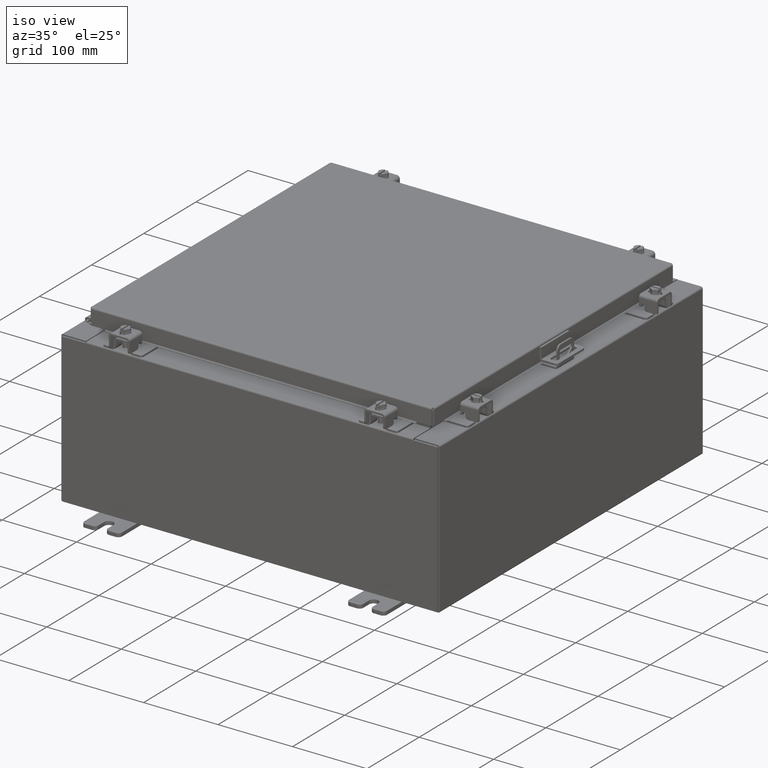
[diagram: clean part render]
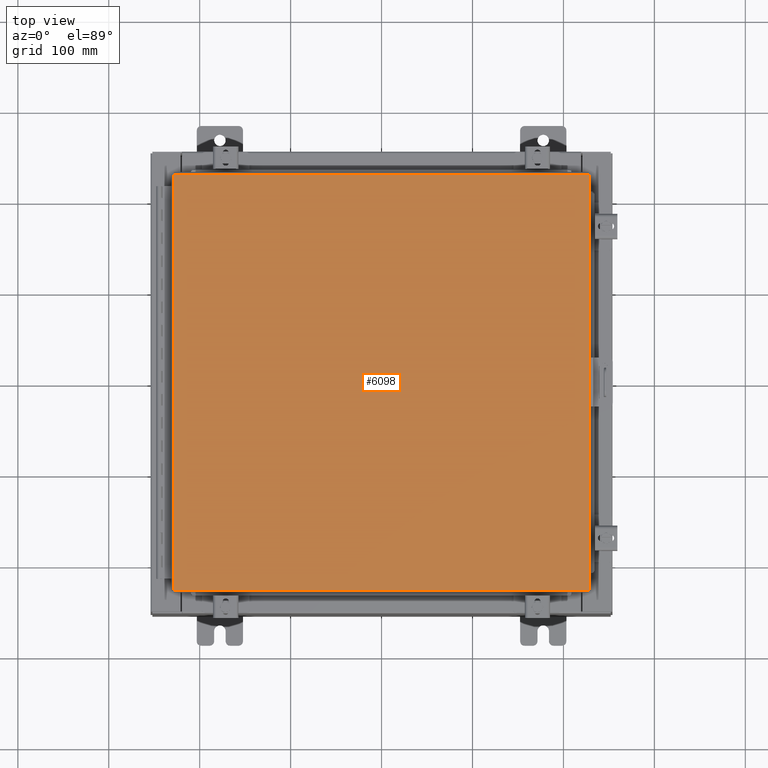
[diagram: tour spotlight — one face highlighted and labeled with its STEP entity id]
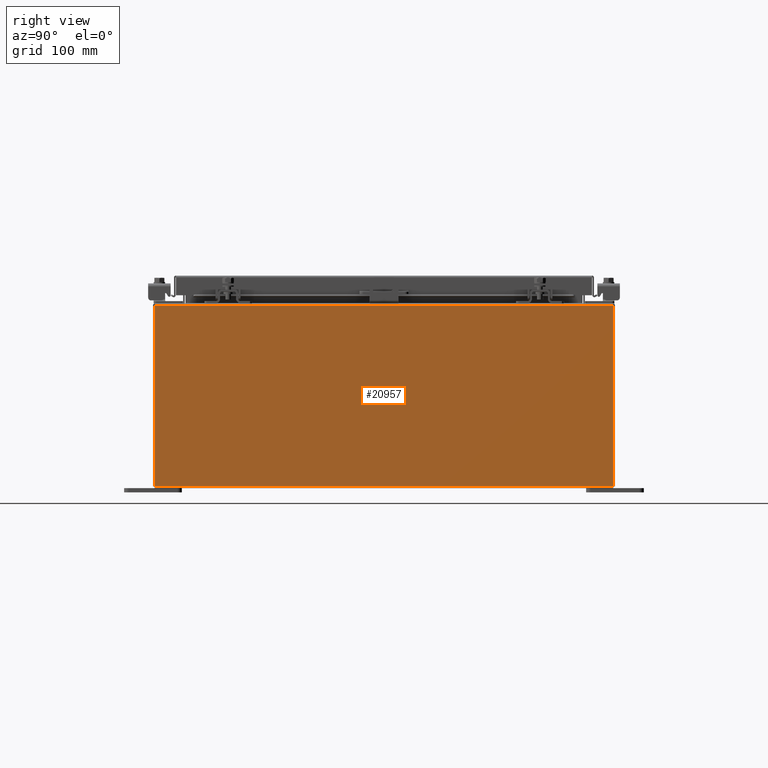
[diagram: tour spotlight — one face highlighted and labeled with its STEP entity id]
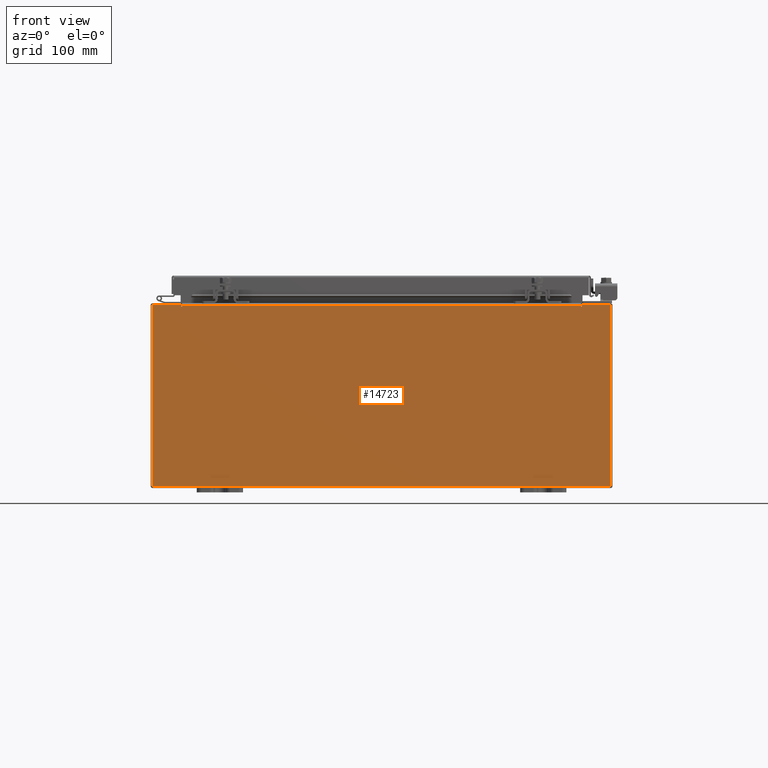
[diagram: tour spotlight — one face highlighted and labeled with its STEP entity id]
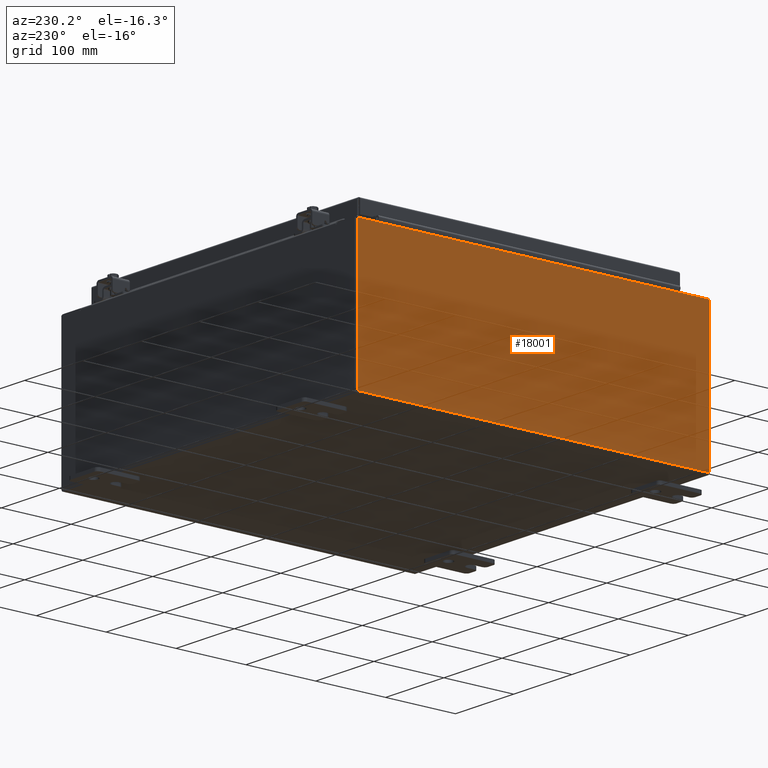
[diagram: tour spotlight — one face highlighted and labeled with its STEP entity id]
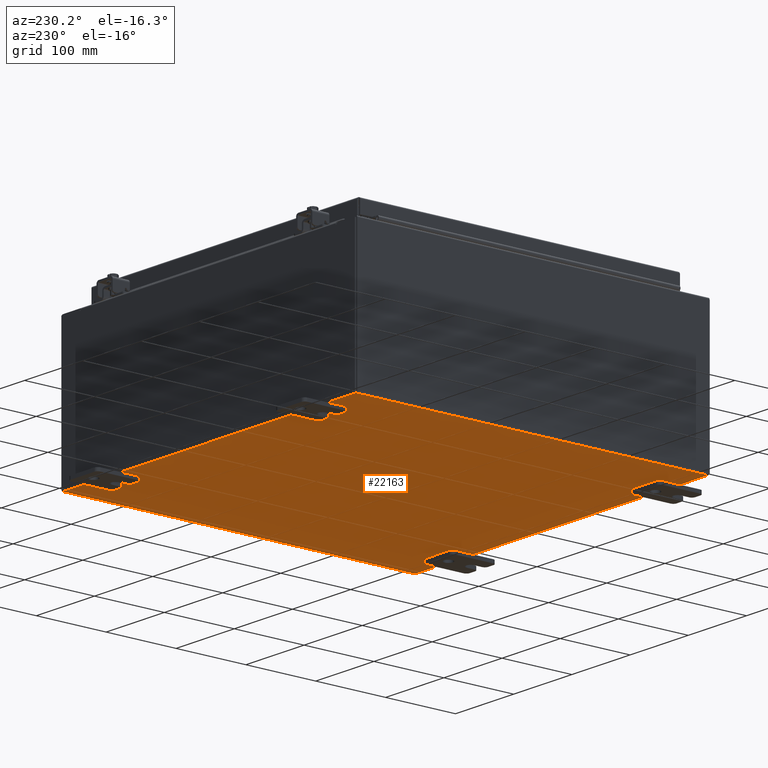
[diagram: tour spotlight — one face highlighted and labeled with its STEP entity id]
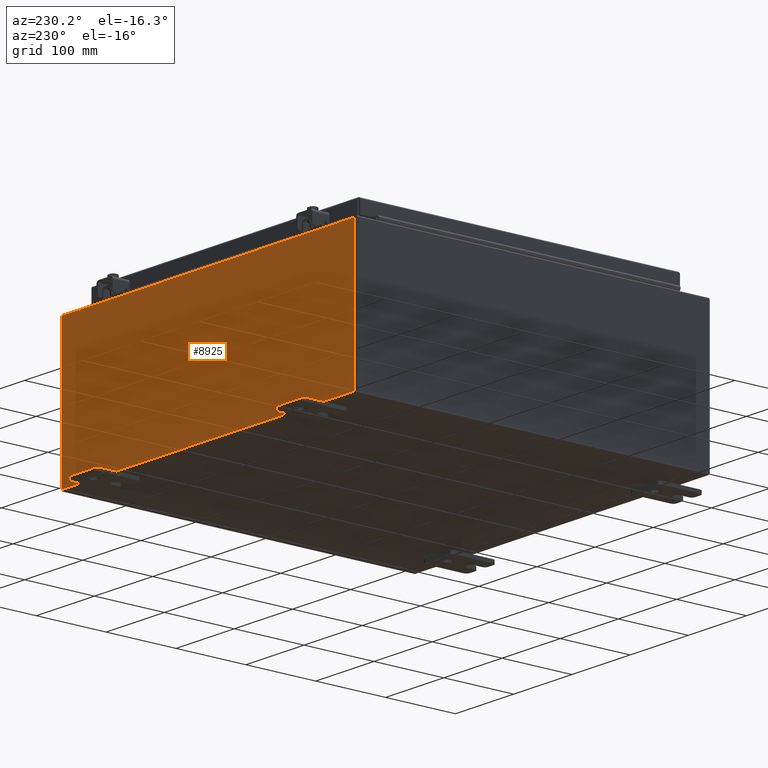
[diagram: tour spotlight — one face highlighted and labeled with its STEP entity id]
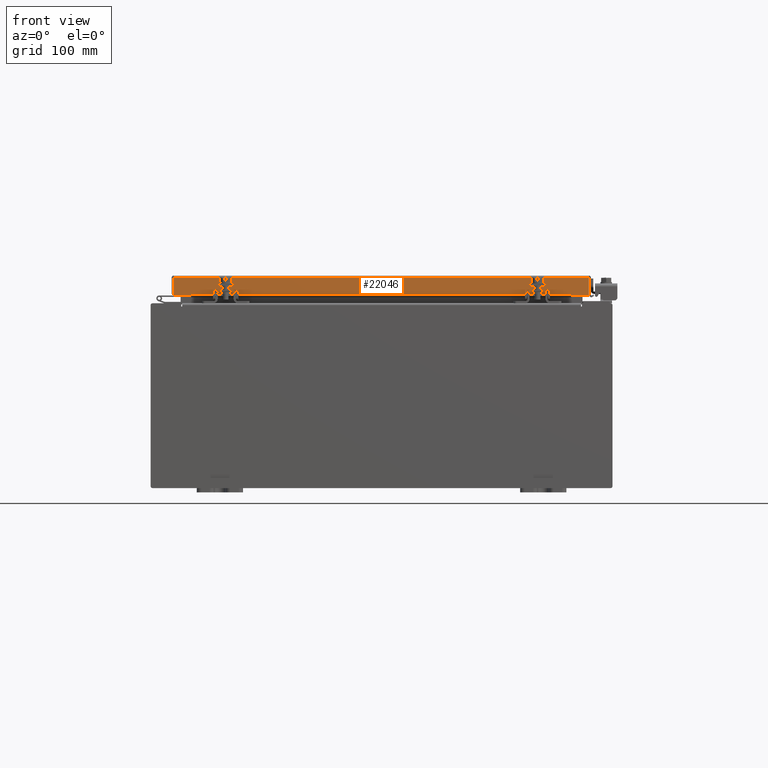
[diagram: tour spotlight — one face highlighted and labeled with its STEP entity id]
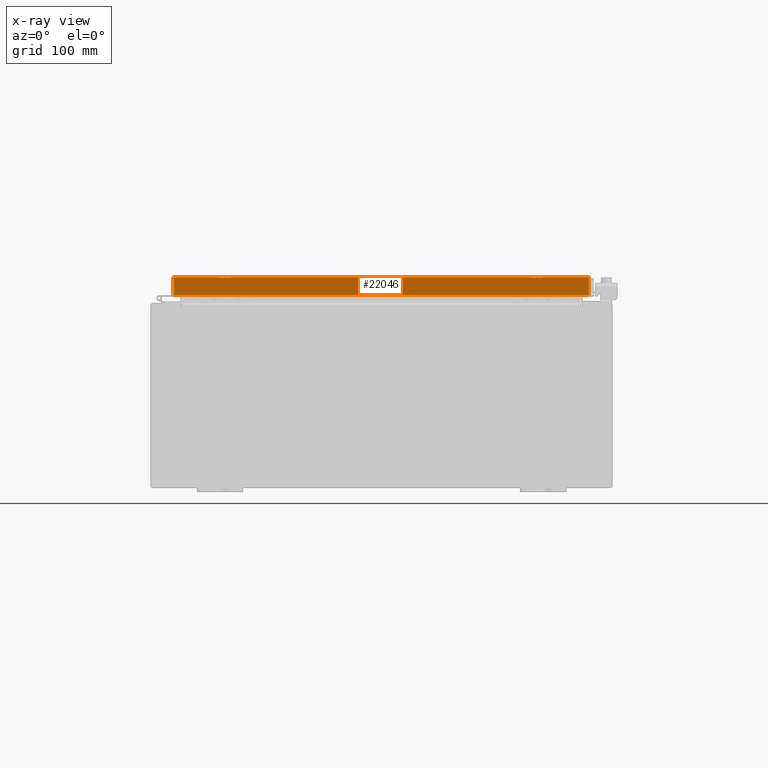
[diagram: x-ray of the same camera — body ghosted, this tour face saturated]
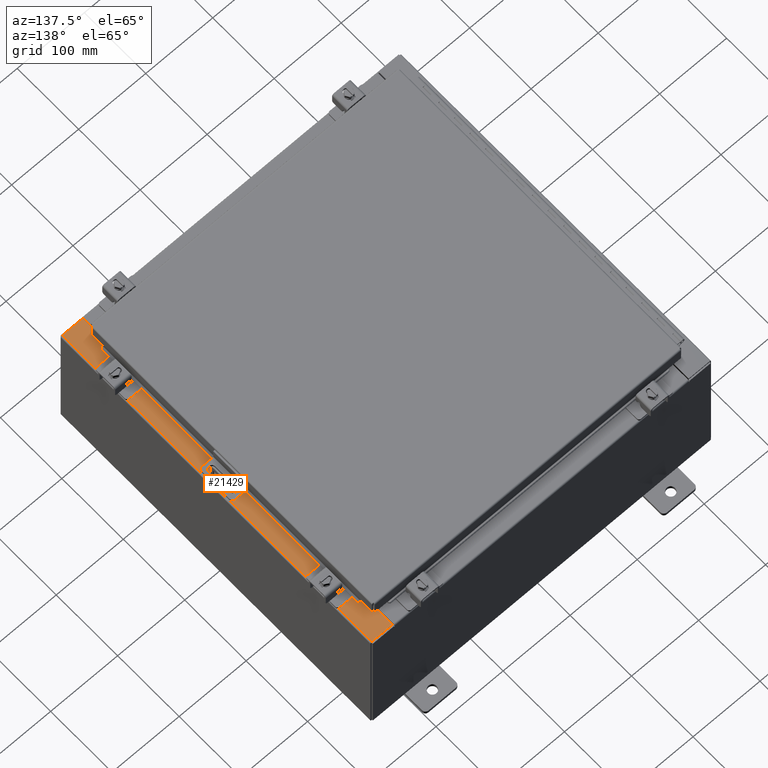
[diagram: tour spotlight — one face highlighted and labeled with its STEP entity id]
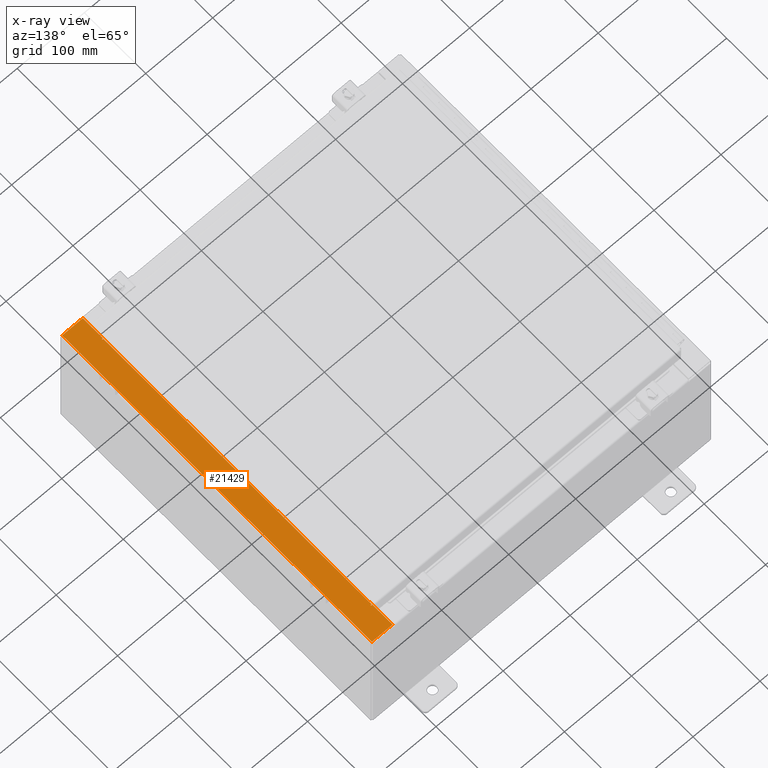
[diagram: x-ray of the same camera — body ghosted, this tour face saturated]
A machine part: a face-by-face anatomy tour. The part has 1613 B-rep faces; the first image is the clean iso view, then the 8 largest visible faces are spotlighted one at a time (largest first), each with its STEP entity span.

Face 1 — top view, entity #6098. In plain terms, the highlighted planar face has unit normal (0, 0, -1).
Definition (entity closure, byte-faithful):
#1781 = CARTESIAN_POINT ( 'NONE',  ( -8.990299999999997700, 9.006299999999999500, -2.048885995248197400E-016 ) ) ;
#2244 = CARTESIAN_POINT ( 'NONE',  ( -8.990299999999997700, 9.006299999999999500, -2.048885995248197400E-016 ) ) ;
#2343 = VERTEX_POINT ( 'NONE', #12674 ) ;
#2467 = VECTOR ( 'NONE', #25202, 39.37007874015748100 ) ;
#4000 = DIRECTION ( 'NONE',  ( 0.0000000000000000000, 0.0000000000000000000, -1.000000000000000000 ) ) ;
#4336 = ORIENTED_EDGE ( 'NONE', *, *, #22370, .T. ) ;
#4401 = LINE ( 'NONE', #27758, #5133 ) ;
#5133 = VECTOR ( 'NONE', #11882, 39.37007874015748100 ) ;
#6098 = ADVANCED_FACE ( 'NONE', ( #10915 ), #17638, .F. ) ;
#7315 = CARTESIAN_POINT ( 'NONE',  ( -8.990299999999999500, -9.006299999999999500, -2.048885995248197400E-016 ) ) ;
#7746 = CARTESIAN_POINT ( 'NONE',  ( 8.990299999999999500, -9.006299999999999500, -7.512581982576723400E-016 ) ) ;
#9296 = CARTESIAN_POINT ( 'NONE',  ( 8.990299999999999500, -9.006299999999999500, -7.512581982576723400E-016 ) ) ;
#9312 = VECTOR ( 'NONE', #17681, 39.37007874015748100 ) ;
#10915 = FACE_OUTER_BOUND ( 'NONE', #26260, .T. ) ;
#11882 = DIRECTION ( 'NONE',  ( 1.000000000000000000, -0.0000000000000000000, -0.0000000000000000000 ) ) ;
#12674 = CARTESIAN_POINT ( 'NONE',  ( 8.990300000000001300, 9.006299999999999500, -2.048885995248197400E-016 ) ) ;
#13491 = VERTEX_POINT ( 'NONE', #2244 ) ;
#13845 = LINE ( 'NONE', #9296, #2467 ) ;
#15088 = EDGE_CURVE ( 'NONE', #2343, #13491, #17511, .T. ) ;
#16135 = AXIS2_PLACEMENT_3D ( 'NONE', #24393, #4000, #19954 ) ;
#16940 = EDGE_CURVE ( 'NONE', #17789, #2343, #13845, .T. ) ;
#17061 = CARTESIAN_POINT ( 'NONE',  ( 8.990300000000001300, 9.006299999999999500, -2.048885995248197400E-016 ) ) ;
#17511 = LINE ( 'NONE', #17061, #28888 ) ;
#17638 = PLANE ( 'NONE',  #16135 ) ;
#17681 = DIRECTION ( 'NONE',  ( 0.0000000000000000000, -1.000000000000000000, 0.0000000000000000000 ) ) ;
#17789 = VERTEX_POINT ( 'NONE', #7746 ) ;
#18793 = VERTEX_POINT ( 'NONE', #7315 ) ;
#18989 = ORIENTED_EDGE ( 'NONE', *, *, #16940, .T. ) ;
#19363 = DIRECTION ( 'NONE',  ( -1.000000000000000000, -0.0000000000000000000, -0.0000000000000000000 ) ) ;
#19400 = ORIENTED_EDGE ( 'NONE', *, *, #15088, .T. ) ;
#19954 = DIRECTION ( 'NONE',  ( -1.000000000000000000, 0.0000000000000000000, -0.0000000000000000000 ) ) ;
#20009 = LINE ( 'NONE', #1781, #9312 ) ;
#22370 = EDGE_CURVE ( 'NONE', #13491, #18793, #20009, .T. ) ;
#23782 = ORIENTED_EDGE ( 'NONE', *, *, #27524, .T. ) ;
#24393 = CARTESIAN_POINT ( 'NONE',  ( 0.0000000000000000000, 0.0000000000000000000, 0.0000000000000000000 ) ) ;
#25202 = DIRECTION ( 'NONE',  ( 0.0000000000000000000, 1.000000000000000000, 0.0000000000000000000 ) ) ;
#26260 = EDGE_LOOP ( 'NONE', ( #23782, #18989, #19400, #4336 ) ) ;
#27524 = EDGE_CURVE ( 'NONE', #18793, #17789, #4401, .T. ) ;
#27758 = CARTESIAN_POINT ( 'NONE',  ( -8.990299999999999500, -9.006299999999999500, -2.048885995248197400E-016 ) ) ;
#28888 = VECTOR ( 'NONE', #19363, 39.37007874015748100 ) ;

Face 2 — right view, entity #20957. In plain terms, the highlighted planar face has unit normal (-1, 0, 0).
Definition (entity closure, byte-faithful):
#158 = VECTOR ( 'NONE', #316, 39.37007874015748100 ) ;
#316 = DIRECTION ( 'NONE',  ( -0.0000000000000000000, -1.000000000000000000, -0.0000000000000000000 ) ) ;
#829 = DIRECTION ( 'NONE',  ( -0.0000000000000000000, -1.000000000000000000, -0.0000000000000000000 ) ) ;
#1465 = LINE ( 'NONE', #18074, #6833 ) ;
#4301 = DIRECTION ( 'NONE',  ( 3.584876173029202900E-015, 0.0000000000000000000, 1.000000000000000000 ) ) ;
#4538 = CARTESIAN_POINT ( 'NONE',  ( 10.00000000000002800, -9.925300000000001800, 7.837599999999999200 ) ) ;
#4947 = ORIENTED_EDGE ( 'NONE', *, *, #14729, .T. ) ;
#4955 = VECTOR ( 'NONE', #18413, 39.37007874015748100 ) ;
#6228 = LINE ( 'NONE', #13956, #158 ) ;
#6602 = VERTEX_POINT ( 'NONE', #19835 ) ;
#6757 = DIRECTION ( 'NONE',  ( -3.584876173029202900E-015, 5.515194112352620500E-016, -1.000000000000000000 ) ) ;
#6833 = VECTOR ( 'NONE', #6757, 39.37007874015748100 ) ;
#7798 = VERTEX_POINT ( 'NONE', #20093 ) ;
#8791 = CARTESIAN_POINT ( 'NONE',  ( 10.00000000000000000, 0.0000000000000000000, -3.610957538630361200E-014 ) ) ;
#9928 = ORIENTED_EDGE ( 'NONE', *, *, #15005, .F. ) ;
#11114 = VERTEX_POINT ( 'NONE', #4538 ) ;
#12429 = ORIENTED_EDGE ( 'NONE', *, *, #23720, .T. ) ;
#13849 = CARTESIAN_POINT ( 'NONE',  ( 10.00000000000000000, 9.925300000000001800, -3.063557977397026300E-014 ) ) ;
#13956 = CARTESIAN_POINT ( 'NONE',  ( 10.00000000000002800, 9.925299999999992900, 7.837599999999999200 ) ) ;
#14729 = EDGE_CURVE ( 'NONE', #11114, #6602, #1465, .T. ) ;
#15005 = EDGE_CURVE ( 'NONE', #7798, #6602, #19675, .T. ) ;
#15664 = PLANE ( 'NONE',  #18026 ) ;
#16584 = ORIENTED_EDGE ( 'NONE', *, *, #25977, .T. ) ;
#17931 = DIRECTION ( 'NONE',  ( -1.000000000000000000, 0.0000000000000000000, 3.584876173029202900E-015 ) ) ;
#18026 = AXIS2_PLACEMENT_3D ( 'NONE', #8791, #17931, #4301 ) ;
#18074 = CARTESIAN_POINT ( 'NONE',  ( 10.00000000000000000, -9.925299999999998200, -4.158357099863696100E-014 ) ) ;
#18413 = DIRECTION ( 'NONE',  ( 3.584876173029202900E-015, -5.515194112352620500E-016, 1.000000000000000000 ) ) ;
#19675 = LINE ( 'NONE', #21349, #20394 ) ;
#19835 = CARTESIAN_POINT ( 'NONE',  ( 10.00000000000000000, -9.925299999999998200, 0.01299999999999983600 ) ) ;
#20093 = CARTESIAN_POINT ( 'NONE',  ( 10.00000000000000000, 9.925299999999998200, 0.01299999999999984700 ) ) ;
#20394 = VECTOR ( 'NONE', #829, 39.37007874015748100 ) ;
#20957 = ADVANCED_FACE ( 'NONE', ( #26075 ), #15664, .F. ) ;
#21349 = CARTESIAN_POINT ( 'NONE',  ( 10.00000000000000000, -9.925300000000000000, 0.01299999999999984700 ) ) ;
#22401 = LINE ( 'NONE', #13849, #4955 ) ;
#23118 = EDGE_LOOP ( 'NONE', ( #16584, #4947, #9928, #12429 ) ) ;
#23720 = EDGE_CURVE ( 'NONE', #7798, #29029, #22401, .T. ) ;
#25977 = EDGE_CURVE ( 'NONE', #29029, #11114, #6228, .T. ) ;
#26075 = FACE_OUTER_BOUND ( 'NONE', #23118, .T. ) ;
#26478 = CARTESIAN_POINT ( 'NONE',  ( 10.00000000000002800, 9.925299999999991100, 7.837599999999999200 ) ) ;
#29029 = VERTEX_POINT ( 'NONE', #26478 ) ;

Face 3 — front view, entity #14723. In plain terms, the highlighted planar face has unit normal (-0, 1, -0).
Definition (entity closure, byte-faithful):
#123 = VERTEX_POINT ( 'NONE', #3110 ) ;
#233 = VERTEX_POINT ( 'NONE', #12649 ) ;
#304 = EDGE_LOOP ( 'NONE', ( #27727, #1363, #20849, #13321, #27795, #18869, #9547, #19084, #16379, #9514, #12972, #8003 ) ) ;
#859 = EDGE_CURVE ( 'NONE', #233, #9406, #10722, .T. ) ;
#1088 = VECTOR ( 'NONE', #1405, 39.37007874015748100 ) ;
#1154 = CARTESIAN_POINT ( 'NONE',  ( -8.637199999999996400, -0.0000000000000000000, 0.0000000000000000000 ) ) ;
#1363 = ORIENTED_EDGE ( 'NONE', *, *, #2580, .F. ) ;
#1405 = DIRECTION ( 'NONE',  ( 0.0000000000000000000, 0.0000000000000000000, 1.000000000000000000 ) ) ;
#2580 = EDGE_CURVE ( 'NONE', #8671, #19855, #16754, .T. ) ;
#2636 = DIRECTION ( 'NONE',  ( -0.0000000000000000000, 1.000000000000000000, -0.0000000000000000000 ) ) ;
#2718 = VERTEX_POINT ( 'NONE', #16651 ) ;
#3110 = CARTESIAN_POINT ( 'NONE',  ( -9.925300000000000000, 0.0000000000000000000, 3.925299999999999600 ) ) ;
#4552 = LINE ( 'NONE', #1154, #15234 ) ;
#5406 = EDGE_CURVE ( 'NONE', #233, #8671, #4552, .T. ) ;
#5444 = LINE ( 'NONE', #7979, #23573 ) ;
#5744 = LINE ( 'NONE', #29516, #22487 ) ;
#6257 = AXIS2_PLACEMENT_3D ( 'NONE', #20294, #29411, #15807 ) ;
#6655 = PLANE ( 'NONE',  #6257 ) ;
#7560 = VECTOR ( 'NONE', #28071, 39.37007874015748100 ) ;
#7979 = CARTESIAN_POINT ( 'NONE',  ( 9.925300000000000000, 0.0000000000000000000, 3.925299999999999600 ) ) ;
#8003 = ORIENTED_EDGE ( 'NONE', *, *, #8910, .T. ) ;
#8671 = VERTEX_POINT ( 'NONE', #21017 ) ;
#8805 = CARTESIAN_POINT ( 'NONE',  ( 8.655875000000000000, 0.0000000000000000000, 3.874949999999999700 ) ) ;
#8910 = EDGE_CURVE ( 'NONE', #123, #14184, #27079, .T. ) ;
#8980 = VECTOR ( 'NONE', #26413, 39.37007874015748100 ) ;
#9406 = VERTEX_POINT ( 'NONE', #25716 ) ;
#9514 = ORIENTED_EDGE ( 'NONE', *, *, #14994, .T. ) ;
#9547 = ORIENTED_EDGE ( 'NONE', *, *, #12624, .F. ) ;
#9913 = CARTESIAN_POINT ( 'NONE',  ( 8.674550000000000000, 0.0000000000000000000, 3.874949999999999700 ) ) ;
#10260 = VECTOR ( 'NONE', #24953, 39.37007874015748100 ) ;
#10448 = EDGE_CURVE ( 'NONE', #2718, #123, #28379, .T. ) ;
#10722 = LINE ( 'NONE', #19407, #22123 ) ;
#11087 = DIRECTION ( 'NONE',  ( 0.0000000000000000000, 0.0000000000000000000, -1.000000000000000000 ) ) ;
#11321 = DIRECTION ( 'NONE',  ( 1.000000000000000000, 0.0000000000000000000, 0.0000000000000000000 ) ) ;
#12624 = EDGE_CURVE ( 'NONE', #27568, #14977, #16548, .T. ) ;
#12649 = CARTESIAN_POINT ( 'NONE',  ( -8.637199999999996400, 1.024442997624098700E-016, 3.912299999999999700 ) ) ;
#12808 = DIRECTION ( 'NONE',  ( -6.510859170600007400E-014, 0.0000000000000000000, -1.000000000000000000 ) ) ;
#12972 = ORIENTED_EDGE ( 'NONE', *, *, #10448, .T. ) ;
#13205 = LINE ( 'NONE', #15055, #1088 ) ;
#13317 = CARTESIAN_POINT ( 'NONE',  ( -8.674549999999996400, 0.0000000000000000000, 3.874949999999999700 ) ) ;
#13321 = ORIENTED_EDGE ( 'NONE', *, *, #859, .T. ) ;
#13809 = EDGE_CURVE ( 'NONE', #18108, #16713, #5444, .T. ) ;
#14184 = VERTEX_POINT ( 'NONE', #20688 ) ;
#14322 = LINE ( 'NONE', #14485, #7560 ) ;
#14485 = CARTESIAN_POINT ( 'NONE',  ( -9.925300000000000000, 0.0000000000000000000, -3.925299999999999600 ) ) ;
#14723 = ADVANCED_FACE ( 'NONE', ( #19645 ), #6655, .F. ) ;
#14977 = VERTEX_POINT ( 'NONE', #9913 ) ;
#14994 = EDGE_CURVE ( 'NONE', #16713, #2718, #14322, .T. ) ;
#15055 = CARTESIAN_POINT ( 'NONE',  ( -8.674549999999996400, -0.0000000000000000000, 0.0000000000000000000 ) ) ;
#15110 = CARTESIAN_POINT ( 'NONE',  ( 8.674549999999747700, -0.0000000000000000000, -5.647877341832665300E-013 ) ) ;
#15234 = VECTOR ( 'NONE', #21660, 39.37007874015748100 ) ;
#15697 = EDGE_CURVE ( 'NONE', #19855, #14184, #13205, .T. ) ;
#15807 = DIRECTION ( 'NONE',  ( 0.0000000000000000000, -0.0000000000000000000, -1.000000000000000000 ) ) ;
#15877 = AXIS2_PLACEMENT_3D ( 'NONE', #16265, #2636, #18548 ) ;
#15901 = AXIS2_PLACEMENT_3D ( 'NONE', #8805, #24705, #11087 ) ;
#16032 = CIRCLE ( 'NONE', #15901, 0.01867500000000003900 ) ;
#16265 = CARTESIAN_POINT ( 'NONE',  ( -8.655874999999996400, 0.0000000000000000000, 3.874949999999999700 ) ) ;
#16379 = ORIENTED_EDGE ( 'NONE', *, *, #13809, .T. ) ;
#16548 = LINE ( 'NONE', #15110, #23299 ) ;
#16651 = CARTESIAN_POINT ( 'NONE',  ( -9.925300000000000000, 0.0000000000000000000, -3.925299999999999600 ) ) ;
#16713 = VERTEX_POINT ( 'NONE', #17549 ) ;
#16754 = CIRCLE ( 'NONE', #15877, 0.01867500000000003900 ) ;
#17170 = VECTOR ( 'NONE', #28718, 39.37007874015748100 ) ;
#17496 = CARTESIAN_POINT ( 'NONE',  ( 8.637200000000000000, 0.0000000000000000000, 0.0000000000000000000 ) ) ;
#17549 = CARTESIAN_POINT ( 'NONE',  ( 9.925300000000000000, 0.0000000000000000000, -3.925299999999999600 ) ) ;
#18108 = VERTEX_POINT ( 'NONE', #27480 ) ;
#18548 = DIRECTION ( 'NONE',  ( 0.0000000000000000000, 0.0000000000000000000, -1.000000000000000000 ) ) ;
#18553 = CARTESIAN_POINT ( 'NONE',  ( 8.674550000000001800, 0.0000000000000000000, 3.925299999999999600 ) ) ;
#18869 = ORIENTED_EDGE ( 'NONE', *, *, #23054, .F. ) ;
#19084 = ORIENTED_EDGE ( 'NONE', *, *, #22533, .T. ) ;
#19268 = CARTESIAN_POINT ( 'NONE',  ( 8.637200000000000000, 0.0000000000000000000, 3.874949999999999700 ) ) ;
#19407 = CARTESIAN_POINT ( 'NONE',  ( -8.637200000000000000, 1.024442997624098700E-016, 3.912299999999999700 ) ) ;
#19645 = FACE_OUTER_BOUND ( 'NONE', #304, .T. ) ;
#19855 = VERTEX_POINT ( 'NONE', #13317 ) ;
#20294 = CARTESIAN_POINT ( 'NONE',  ( 0.0000000000000000000, 0.0000000000000000000, 0.0000000000000000000 ) ) ;
#20657 = VERTEX_POINT ( 'NONE', #19268 ) ;
#20688 = CARTESIAN_POINT ( 'NONE',  ( -8.674549999999996400, 0.0000000000000000000, 3.925299999999999600 ) ) ;
#20849 = ORIENTED_EDGE ( 'NONE', *, *, #5406, .F. ) ;
#21017 = CARTESIAN_POINT ( 'NONE',  ( -8.637199999999996400, -0.0000000000000000000, 3.874949999999999700 ) ) ;
#21660 = DIRECTION ( 'NONE',  ( 0.0000000000000000000, 0.0000000000000000000, -1.000000000000000000 ) ) ;
#21671 = DIRECTION ( 'NONE',  ( 1.000000000000000000, 0.0000000000000000000, 0.0000000000000000000 ) ) ;
#22123 = VECTOR ( 'NONE', #21671, 39.37007874015748100 ) ;
#22487 = VECTOR ( 'NONE', #11321, 39.37007874015748100 ) ;
#22533 = EDGE_CURVE ( 'NONE', #27568, #18108, #5744, .T. ) ;
#22686 = CARTESIAN_POINT ( 'NONE',  ( -9.925300000000000000, 0.0000000000000000000, 3.925299999999999600 ) ) ;
#23054 = EDGE_CURVE ( 'NONE', #14977, #20657, #16032, .T. ) ;
#23299 = VECTOR ( 'NONE', #12808, 39.37007874015748100 ) ;
#23573 = VECTOR ( 'NONE', #23879, 39.37007874015748100 ) ;
#23879 = DIRECTION ( 'NONE',  ( 0.0000000000000000000, 0.0000000000000000000, -1.000000000000000000 ) ) ;
#24705 = DIRECTION ( 'NONE',  ( -0.0000000000000000000, 1.000000000000000000, -0.0000000000000000000 ) ) ;
#24953 = DIRECTION ( 'NONE',  ( -0.0000000000000000000, -0.0000000000000000000, 1.000000000000000000 ) ) ;
#25716 = CARTESIAN_POINT ( 'NONE',  ( 8.637200000000000000, 0.0000000000000000000, 3.912299999999999700 ) ) ;
#26413 = DIRECTION ( 'NONE',  ( 1.000000000000000000, 0.0000000000000000000, 0.0000000000000000000 ) ) ;
#27079 = LINE ( 'NONE', #28735, #8980 ) ;
#27480 = CARTESIAN_POINT ( 'NONE',  ( 9.925300000000000000, 0.0000000000000000000, 3.925299999999999600 ) ) ;
#27568 = VERTEX_POINT ( 'NONE', #18553 ) ;
#27727 = ORIENTED_EDGE ( 'NONE', *, *, #15697, .F. ) ;
#27795 = ORIENTED_EDGE ( 'NONE', *, *, #28513, .F. ) ;
#28071 = DIRECTION ( 'NONE',  ( -1.000000000000000000, -0.0000000000000000000, -0.0000000000000000000 ) ) ;
#28379 = LINE ( 'NONE', #22686, #10260 ) ;
#28513 = EDGE_CURVE ( 'NONE', #20657, #9406, #29261, .T. ) ;
#28718 = DIRECTION ( 'NONE',  ( 0.0000000000000000000, 0.0000000000000000000, 1.000000000000000000 ) ) ;
#28735 = CARTESIAN_POINT ( 'NONE',  ( -9.925300000000000000, 0.0000000000000000000, 3.925299999999999600 ) ) ;
#29261 = LINE ( 'NONE', #17496, #17170 ) ;
#29411 = DIRECTION ( 'NONE',  ( 0.0000000000000000000, -1.000000000000000000, 0.0000000000000000000 ) ) ;
#29516 = CARTESIAN_POINT ( 'NONE',  ( -9.925300000000000000, 0.0000000000000000000, 3.925299999999999600 ) ) ;

Face 4 — auxiliary view, entity #18001. In plain terms, the highlighted planar face has unit normal (1, 0, 0).
Definition (entity closure, byte-faithful):
#1659 = DIRECTION ( 'NONE',  ( 0.0000000000000000000, 1.000000000000000000, 0.0000000000000000000 ) ) ;
#3860 = EDGE_CURVE ( 'NONE', #4625, #25727, #26657, .T. ) ;
#4625 = VERTEX_POINT ( 'NONE', #11957 ) ;
#5348 = VERTEX_POINT ( 'NONE', #25996 ) ;
#7116 = DIRECTION ( 'NONE',  ( -0.0000000000000000000, 1.000000000000000000, -0.0000000000000000000 ) ) ;
#7992 = CARTESIAN_POINT ( 'NONE',  ( -10.00000000000000000, 9.925300000000001800, 0.01299999999999983600 ) ) ;
#9630 = VECTOR ( 'NONE', #24245, 39.37007874015748100 ) ;
#9723 = DIRECTION ( 'NONE',  ( 3.584876173029202900E-015, 5.515194112352620500E-016, -1.000000000000000000 ) ) ;
#11099 = LINE ( 'NONE', #25303, #15736 ) ;
#11644 = FACE_OUTER_BOUND ( 'NONE', #22306, .T. ) ;
#11957 = CARTESIAN_POINT ( 'NONE',  ( -10.00000000000002800, 9.925299999999996500, 7.837599999999999200 ) ) ;
#12663 = EDGE_CURVE ( 'NONE', #5348, #4625, #27168, .T. ) ;
#13183 = AXIS2_PLACEMENT_3D ( 'NONE', #22575, #13603, #29336 ) ;
#13529 = ORIENTED_EDGE ( 'NONE', *, *, #15383, .F. ) ;
#13603 = DIRECTION ( 'NONE',  ( 1.000000000000000000, 0.0000000000000000000, 3.584876173029202900E-015 ) ) ;
#14621 = ORIENTED_EDGE ( 'NONE', *, *, #12663, .T. ) ;
#15119 = CARTESIAN_POINT ( 'NONE',  ( -10.00000000000000000, -9.925299999999998200, -4.158357099863696100E-014 ) ) ;
#15127 = VECTOR ( 'NONE', #1659, 39.37007874015748100 ) ;
#15383 = EDGE_CURVE ( 'NONE', #17361, #25727, #11099, .T. ) ;
#15736 = VECTOR ( 'NONE', #7116, 39.37007874015748100 ) ;
#16092 = EDGE_CURVE ( 'NONE', #17361, #5348, #17100, .T. ) ;
#17100 = LINE ( 'NONE', #15119, #9630 ) ;
#17361 = VERTEX_POINT ( 'NONE', #22102 ) ;
#18001 = ADVANCED_FACE ( 'NONE', ( #11644 ), #22674, .F. ) ;
#20646 = VECTOR ( 'NONE', #9723, 39.37007874015748100 ) ;
#21279 = ORIENTED_EDGE ( 'NONE', *, *, #16092, .T. ) ;
#22102 = CARTESIAN_POINT ( 'NONE',  ( -10.00000000000000000, -9.925299999999998200, 0.01299999999999984700 ) ) ;
#22306 = EDGE_LOOP ( 'NONE', ( #14621, #29481, #13529, #21279 ) ) ;
#22575 = CARTESIAN_POINT ( 'NONE',  ( -10.00000000000000000, 0.0000000000000000000, -3.610957538630361200E-014 ) ) ;
#22674 = PLANE ( 'NONE',  #13183 ) ;
#24245 = DIRECTION ( 'NONE',  ( -3.584876173029202900E-015, -5.515194112352620500E-016, 1.000000000000000000 ) ) ;
#25303 = CARTESIAN_POINT ( 'NONE',  ( -10.00000000000000000, 9.925300000000000000, 0.01299999999999984700 ) ) ;
#25612 = CARTESIAN_POINT ( 'NONE',  ( -10.00000000000000000, 9.925300000000001800, -3.063557977397026300E-014 ) ) ;
#25727 = VERTEX_POINT ( 'NONE', #7992 ) ;
#25996 = CARTESIAN_POINT ( 'NONE',  ( -10.00000000000002800, -9.925300000000000000, 7.837599999999999200 ) ) ;
#26587 = CARTESIAN_POINT ( 'NONE',  ( -10.00000000000002800, -9.925300000000000000, 7.837599999999999200 ) ) ;
#26657 = LINE ( 'NONE', #25612, #20646 ) ;
#27168 = LINE ( 'NONE', #26587, #15127 ) ;
#29336 = DIRECTION ( 'NONE',  ( 3.584876173029202900E-015, 0.0000000000000000000, -1.000000000000000000 ) ) ;
#29481 = ORIENTED_EDGE ( 'NONE', *, *, #3860, .T. ) ;

Face 5 — auxiliary view, entity #22163. In plain terms, the highlighted planar face has unit normal (0, 0, -1).
Definition (entity closure, byte-faithful):
#150 = VECTOR ( 'NONE', #7765, 39.37007874015748100 ) ;
#635 = EDGE_CURVE ( 'NONE', #16349, #14763, #12521, .T. ) ;
#969 = DIRECTION ( 'NONE',  ( 0.0000000000000000000, 0.0000000000000000000, -1.000000000000000000 ) ) ;
#3775 = VECTOR ( 'NONE', #26943, 39.37007874015748100 ) ;
#4372 = ORIENTED_EDGE ( 'NONE', *, *, #635, .T. ) ;
#4520 = AXIS2_PLACEMENT_3D ( 'NONE', #10048, #969, #16895 ) ;
#4659 = CARTESIAN_POINT ( 'NONE',  ( -9.912300000000000100, -9.925299999999998200, -0.07469999999999994700 ) ) ;
#6221 = LINE ( 'NONE', #21394, #150 ) ;
#6851 = CARTESIAN_POINT ( 'NONE',  ( -9.912300000000000100, 9.925300000000001800, -0.07470000000000000300 ) ) ;
#7765 = DIRECTION ( 'NONE',  ( -0.0000000000000000000, -1.000000000000000000, -0.0000000000000000000 ) ) ;
#8468 = DIRECTION ( 'NONE',  ( -1.000000000000000000, -0.0000000000000000000, -0.0000000000000000000 ) ) ;
#8648 = ORIENTED_EDGE ( 'NONE', *, *, #11675, .F. ) ;
#9307 = EDGE_LOOP ( 'NONE', ( #8648, #4372, #18706, #19158 ) ) ;
#9661 = VERTEX_POINT ( 'NONE', #17670 ) ;
#10048 = CARTESIAN_POINT ( 'NONE',  ( 0.0000000000000000000, 0.0000000000000000000, -0.07470000000000000300 ) ) ;
#11675 = EDGE_CURVE ( 'NONE', #16349, #9661, #21930, .T. ) ;
#11747 = CARTESIAN_POINT ( 'NONE',  ( -9.912300000000000100, -9.925299999999998200, -0.07469999999999994700 ) ) ;
#12521 = LINE ( 'NONE', #11747, #29254 ) ;
#13586 = FACE_OUTER_BOUND ( 'NONE', #9307, .T. ) ;
#13931 = DIRECTION ( 'NONE',  ( -0.0000000000000000000, 1.000000000000000000, -0.0000000000000000000 ) ) ;
#14763 = VERTEX_POINT ( 'NONE', #6851 ) ;
#16349 = VERTEX_POINT ( 'NONE', #4659 ) ;
#16895 = DIRECTION ( 'NONE',  ( -1.000000000000000000, 0.0000000000000000000, -0.0000000000000000000 ) ) ;
#17382 = EDGE_CURVE ( 'NONE', #22471, #14763, #27294, .T. ) ;
#17670 = CARTESIAN_POINT ( 'NONE',  ( 9.912300000000000100, -9.925299999999998200, -0.07470000000000000300 ) ) ;
#18706 = ORIENTED_EDGE ( 'NONE', *, *, #17382, .F. ) ;
#19158 = ORIENTED_EDGE ( 'NONE', *, *, #19548, .T. ) ;
#19548 = EDGE_CURVE ( 'NONE', #22471, #9661, #6221, .T. ) ;
#21394 = CARTESIAN_POINT ( 'NONE',  ( 9.912300000000000100, 9.925300000000001800, -0.07469999999999994700 ) ) ;
#21930 = LINE ( 'NONE', #24688, #3775 ) ;
#22163 = ADVANCED_FACE ( 'NONE', ( #13586 ), #25919, .T. ) ;
#22471 = VERTEX_POINT ( 'NONE', #29314 ) ;
#24366 = CARTESIAN_POINT ( 'NONE',  ( -10.00000000000000000, 9.925300000000001800, -0.07470000000000000300 ) ) ;
#24688 = CARTESIAN_POINT ( 'NONE',  ( -10.00000000000000000, -9.925299999999998200, -0.07470000000000000300 ) ) ;
#25919 = PLANE ( 'NONE',  #4520 ) ;
#26581 = VECTOR ( 'NONE', #8468, 39.37007874015748100 ) ;
#26943 = DIRECTION ( 'NONE',  ( 1.000000000000000000, 0.0000000000000000000, 0.0000000000000000000 ) ) ;
#27294 = LINE ( 'NONE', #24366, #26581 ) ;
#29254 = VECTOR ( 'NONE', #13931, 39.37007874015748100 ) ;
#29314 = CARTESIAN_POINT ( 'NONE',  ( 9.912300000000000100, 9.925299999999998200, -0.07469999999999994700 ) ) ;

Face 6 — auxiliary view, entity #8925. In plain terms, the highlighted planar face has unit normal (0, -1, 0).
Definition (entity closure, byte-faithful):
#841 = EDGE_CURVE ( 'NONE', #4242, #17401, #12153, .T. ) ;
#911 = ORIENTED_EDGE ( 'NONE', *, *, #4385, .F. ) ;
#1300 = VECTOR ( 'NONE', #11235, 39.37007874015748100 ) ;
#1595 = LINE ( 'NONE', #20532, #8365 ) ;
#2031 = VERTEX_POINT ( 'NONE', #2561 ) ;
#2437 = ORIENTED_EDGE ( 'NONE', *, *, #16568, .F. ) ;
#2450 = VECTOR ( 'NONE', #29038, 39.37007874015748100 ) ;
#2561 = CARTESIAN_POINT ( 'NONE',  ( -8.674549999999996400, 0.0000000000000000000, 3.925299999999999600 ) ) ;
#2604 = AXIS2_PLACEMENT_3D ( 'NONE', #6755, #22658, #9022 ) ;
#2823 = CARTESIAN_POINT ( 'NONE',  ( -8.637199999999996400, -0.0000000000000000000, 3.874949999999999700 ) ) ;
#3356 = LINE ( 'NONE', #23039, #14755 ) ;
#3387 = ORIENTED_EDGE ( 'NONE', *, *, #10037, .F. ) ;
#3438 = CARTESIAN_POINT ( 'NONE',  ( 8.655875000000000000, 0.0000000000000000000, 3.874949999999999700 ) ) ;
#3801 = VERTEX_POINT ( 'NONE', #14100 ) ;
#4242 = VERTEX_POINT ( 'NONE', #8806 ) ;
#4362 = CARTESIAN_POINT ( 'NONE',  ( -9.925300000000000000, 0.0000000000000000000, 3.925299999999999600 ) ) ;
#4385 = EDGE_CURVE ( 'NONE', #3801, #2031, #20621, .T. ) ;
#4819 = DIRECTION ( 'NONE',  ( 0.0000000000000000000, 0.0000000000000000000, 1.000000000000000000 ) ) ;
#4941 = EDGE_CURVE ( 'NONE', #13930, #9470, #27309, .T. ) ;
#5077 = ORIENTED_EDGE ( 'NONE', *, *, #24781, .T. ) ;
#5182 = CARTESIAN_POINT ( 'NONE',  ( -8.637199999999996400, -0.0000000000000000000, 0.0000000000000000000 ) ) ;
#5734 = DIRECTION ( 'NONE',  ( 0.0000000000000000000, 0.0000000000000000000, -1.000000000000000000 ) ) ;
#6706 = VECTOR ( 'NONE', #24939, 39.37007874015748100 ) ;
#6755 = CARTESIAN_POINT ( 'NONE',  ( -8.655874999999996400, 0.0000000000000000000, 3.874949999999999700 ) ) ;
#6957 = CARTESIAN_POINT ( 'NONE',  ( -9.925300000000000000, 0.0000000000000000000, 3.925299999999999600 ) ) ;
#8365 = VECTOR ( 'NONE', #18232, 39.37007874015748100 ) ;
#8806 = CARTESIAN_POINT ( 'NONE',  ( -8.637199999999996400, 1.024442997624098700E-016, 3.912299999999999700 ) ) ;
#8876 = LINE ( 'NONE', #21635, #20278 ) ;
#8925 = ADVANCED_FACE ( 'NONE', ( #26367 ), #10647, .F. ) ;
#9022 = DIRECTION ( 'NONE',  ( 0.0000000000000000000, 0.0000000000000000000, -1.000000000000000000 ) ) ;
#9160 = VERTEX_POINT ( 'NONE', #18204 ) ;
#9470 = VERTEX_POINT ( 'NONE', #14811 ) ;
#9607 = VECTOR ( 'NONE', #9688, 39.37007874015748100 ) ;
#9688 = DIRECTION ( 'NONE',  ( -0.0000000000000000000, -0.0000000000000000000, 1.000000000000000000 ) ) ;
#10037 = EDGE_CURVE ( 'NONE', #23057, #17401, #8876, .T. ) ;
#10647 = PLANE ( 'NONE',  #15682 ) ;
#11039 = ORIENTED_EDGE ( 'NONE', *, *, #841, .T. ) ;
#11235 = DIRECTION ( 'NONE',  ( 1.000000000000000000, 0.0000000000000000000, 0.0000000000000000000 ) ) ;
#11328 = CARTESIAN_POINT ( 'NONE',  ( -9.925300000000000000, 0.0000000000000000000, -3.925299999999999600 ) ) ;
#12028 = DIRECTION ( 'NONE',  ( 0.0000000000000000000, 0.0000000000000000000, -1.000000000000000000 ) ) ;
#12153 = LINE ( 'NONE', #26106, #22838 ) ;
#12170 = LINE ( 'NONE', #5182, #17507 ) ;
#12252 = CIRCLE ( 'NONE', #2604, 0.01867500000000003900 ) ;
#12805 = EDGE_CURVE ( 'NONE', #13629, #3801, #12252, .T. ) ;
#12928 = DIRECTION ( 'NONE',  ( 0.0000000000000000000, -0.0000000000000000000, -1.000000000000000000 ) ) ;
#12932 = EDGE_CURVE ( 'NONE', #28800, #2031, #3356, .T. ) ;
#13026 = CARTESIAN_POINT ( 'NONE',  ( 8.674549999999747700, -0.0000000000000000000, -5.647877341832665300E-013 ) ) ;
#13270 = CARTESIAN_POINT ( 'NONE',  ( 8.637200000000000000, 0.0000000000000000000, 3.874949999999999700 ) ) ;
#13314 = VERTEX_POINT ( 'NONE', #19867 ) ;
#13400 = ORIENTED_EDGE ( 'NONE', *, *, #4941, .F. ) ;
#13629 = VERTEX_POINT ( 'NONE', #2823 ) ;
#13930 = VERTEX_POINT ( 'NONE', #15146 ) ;
#14100 = CARTESIAN_POINT ( 'NONE',  ( -8.674549999999996400, 0.0000000000000000000, 3.874949999999999700 ) ) ;
#14278 = ORIENTED_EDGE ( 'NONE', *, *, #12805, .F. ) ;
#14328 = EDGE_CURVE ( 'NONE', #4242, #13629, #12170, .T. ) ;
#14755 = VECTOR ( 'NONE', #20842, 39.37007874015748100 ) ;
#14811 = CARTESIAN_POINT ( 'NONE',  ( 8.674550000000000000, 0.0000000000000000000, 3.874949999999999700 ) ) ;
#14834 = CARTESIAN_POINT ( 'NONE',  ( 9.925300000000000000, 0.0000000000000000000, 3.925299999999999600 ) ) ;
#14889 = DIRECTION ( 'NONE',  ( 0.0000000000000000000, 0.0000000000000000000, 1.000000000000000000 ) ) ;
#15146 = CARTESIAN_POINT ( 'NONE',  ( 8.674550000000001800, 0.0000000000000000000, 3.925299999999999600 ) ) ;
#15682 = AXIS2_PLACEMENT_3D ( 'NONE', #21990, #19723, #12928 ) ;
#16193 = ORIENTED_EDGE ( 'NONE', *, *, #23302, .T. ) ;
#16568 = EDGE_CURVE ( 'NONE', #9470, #23057, #29165, .T. ) ;
#17401 = VERTEX_POINT ( 'NONE', #20031 ) ;
#17507 = VECTOR ( 'NONE', #12028, 39.37007874015748100 ) ;
#18204 = CARTESIAN_POINT ( 'NONE',  ( -9.925300000000000000, 0.0000000000000000000, -3.925299999999999600 ) ) ;
#18232 = DIRECTION ( 'NONE',  ( 0.0000000000000000000, 0.0000000000000000000, -1.000000000000000000 ) ) ;
#18802 = LINE ( 'NONE', #11328, #6706 ) ;
#19375 = DIRECTION ( 'NONE',  ( -0.0000000000000000000, 1.000000000000000000, -0.0000000000000000000 ) ) ;
#19482 = LINE ( 'NONE', #4362, #1300 ) ;
#19723 = DIRECTION ( 'NONE',  ( 0.0000000000000000000, -1.000000000000000000, 0.0000000000000000000 ) ) ;
#19867 = CARTESIAN_POINT ( 'NONE',  ( 9.925300000000000000, 0.0000000000000000000, -3.925299999999999600 ) ) ;
#20031 = CARTESIAN_POINT ( 'NONE',  ( 8.637200000000000000, 0.0000000000000000000, 3.912299999999999700 ) ) ;
#20050 = ORIENTED_EDGE ( 'NONE', *, *, #24346, .T. ) ;
#20278 = VECTOR ( 'NONE', #14889, 39.37007874015748100 ) ;
#20532 = CARTESIAN_POINT ( 'NONE',  ( 9.925300000000000000, 0.0000000000000000000, 3.925299999999999600 ) ) ;
#20621 = LINE ( 'NONE', #25201, #26630 ) ;
#20719 = ORIENTED_EDGE ( 'NONE', *, *, #14328, .F. ) ;
#20842 = DIRECTION ( 'NONE',  ( 1.000000000000000000, 0.0000000000000000000, 0.0000000000000000000 ) ) ;
#21616 = ORIENTED_EDGE ( 'NONE', *, *, #12932, .T. ) ;
#21635 = CARTESIAN_POINT ( 'NONE',  ( 8.637200000000000000, 0.0000000000000000000, 0.0000000000000000000 ) ) ;
#21990 = CARTESIAN_POINT ( 'NONE',  ( 0.0000000000000000000, 0.0000000000000000000, 0.0000000000000000000 ) ) ;
#22658 = DIRECTION ( 'NONE',  ( -0.0000000000000000000, 1.000000000000000000, -0.0000000000000000000 ) ) ;
#22838 = VECTOR ( 'NONE', #28405, 39.37007874015748100 ) ;
#22972 = EDGE_LOOP ( 'NONE', ( #911, #14278, #20719, #11039, #3387, #2437, #13400, #5077, #25858, #20050, #16193, #21616 ) ) ;
#23039 = CARTESIAN_POINT ( 'NONE',  ( -9.925300000000000000, 0.0000000000000000000, 3.925299999999999600 ) ) ;
#23057 = VERTEX_POINT ( 'NONE', #13270 ) ;
#23302 = EDGE_CURVE ( 'NONE', #9160, #28800, #27704, .T. ) ;
#24191 = AXIS2_PLACEMENT_3D ( 'NONE', #3438, #19375, #5734 ) ;
#24346 = EDGE_CURVE ( 'NONE', #13314, #9160, #18802, .T. ) ;
#24781 = EDGE_CURVE ( 'NONE', #13930, #28385, #19482, .T. ) ;
#24939 = DIRECTION ( 'NONE',  ( -1.000000000000000000, -0.0000000000000000000, -0.0000000000000000000 ) ) ;
#25201 = CARTESIAN_POINT ( 'NONE',  ( -8.674549999999996400, -0.0000000000000000000, 0.0000000000000000000 ) ) ;
#25572 = CARTESIAN_POINT ( 'NONE',  ( -9.925300000000000000, 0.0000000000000000000, 3.925299999999999600 ) ) ;
#25858 = ORIENTED_EDGE ( 'NONE', *, *, #25927, .T. ) ;
#25927 = EDGE_CURVE ( 'NONE', #28385, #13314, #1595, .T. ) ;
#26106 = CARTESIAN_POINT ( 'NONE',  ( -8.637200000000000000, 1.024442997624098700E-016, 3.912299999999999700 ) ) ;
#26367 = FACE_OUTER_BOUND ( 'NONE', #22972, .T. ) ;
#26630 = VECTOR ( 'NONE', #4819, 39.37007874015748100 ) ;
#27309 = LINE ( 'NONE', #13026, #2450 ) ;
#27704 = LINE ( 'NONE', #25572, #9607 ) ;
#28385 = VERTEX_POINT ( 'NONE', #14834 ) ;
#28405 = DIRECTION ( 'NONE',  ( 1.000000000000000000, 0.0000000000000000000, 0.0000000000000000000 ) ) ;
#28800 = VERTEX_POINT ( 'NONE', #6957 ) ;
#29038 = DIRECTION ( 'NONE',  ( -6.510859170600007400E-014, 0.0000000000000000000, -1.000000000000000000 ) ) ;
#29165 = CIRCLE ( 'NONE', #24191, 0.01867500000000003900 ) ;

Face 7 — front view, entity #22046. An x-ray twin of the same camera follows (body ghosted, this face saturated) — the face is partly hidden behind the body. In plain terms, the highlighted planar face has unit normal (-0, 1, -0).
Definition (entity closure, byte-faithful):
#892 = VERTEX_POINT ( 'NONE', #3568 ) ;
#2430 = VECTOR ( 'NONE', #23636, 39.37007874015748100 ) ;
#2567 = VERTEX_POINT ( 'NONE', #18041 ) ;
#2923 = CARTESIAN_POINT ( 'NONE',  ( -8.989157864376267100, -9.093999999999999400, -0.08770000000000007000 ) ) ;
#3122 = LINE ( 'NONE', #14613, #2430 ) ;
#3568 = CARTESIAN_POINT ( 'NONE',  ( -8.989157864376267100, -9.094000000000001200, -0.8499999999999975400 ) ) ;
#4332 = FACE_OUTER_BOUND ( 'NONE', #14122, .T. ) ;
#4439 = ORIENTED_EDGE ( 'NONE', *, *, #13647, .F. ) ;
#5116 = EDGE_CURVE ( 'NONE', #18878, #12752, #27650, .T. ) ;
#5185 = DIRECTION ( 'NONE',  ( -3.393150142274112700E-031, 1.000000000000000000, -2.818880942772360100E-015 ) ) ;
#5499 = CARTESIAN_POINT ( 'NONE',  ( 8.239157864376267100, -9.093999999999999400, -0.8500000000000006400 ) ) ;
#6505 = VECTOR ( 'NONE', #15029, 39.37007874015748100 ) ;
#6818 = ORIENTED_EDGE ( 'NONE', *, *, #28425, .F. ) ;
#6852 = VECTOR ( 'NONE', #22678, 39.37007874015748100 ) ;
#8761 = VERTEX_POINT ( 'NONE', #5499 ) ;
#10750 = EDGE_CURVE ( 'NONE', #18878, #892, #3122, .T. ) ;
#11361 = ORIENTED_EDGE ( 'NONE', *, *, #10750, .T. ) ;
#12048 = CARTESIAN_POINT ( 'NONE',  ( 9.077999999999999400, -9.094000000000001200, -0.8499999999999996400 ) ) ;
#12533 = LINE ( 'NONE', #12720, #6505 ) ;
#12720 = CARTESIAN_POINT ( 'NONE',  ( 8.989157864376268800, -9.093999999999999400, -0.07469999999999978000 ) ) ;
#12752 = VERTEX_POINT ( 'NONE', #24428 ) ;
#13647 = EDGE_CURVE ( 'NONE', #8761, #2567, #14345, .T. ) ;
#13726 = DIRECTION ( 'NONE',  ( 1.000000000000000000, 3.393150142274113600E-031, -9.248938716548949800E-046 ) ) ;
#14122 = EDGE_LOOP ( 'NONE', ( #29040, #11361, #21676, #4439, #24704, #6818 ) ) ;
#14236 = CARTESIAN_POINT ( 'NONE',  ( 3.085730739384078400E-030, -9.093999999999999400, 2.589571694958342600E-014 ) ) ;
#14252 = DIRECTION ( 'NONE',  ( -1.000000000000000000, -0.0000000000000000000, 1.203722403024570700E-016 ) ) ;
#14267 = DIRECTION ( 'NONE',  ( -1.000000000000000000, 0.0000000000000000000, 0.0000000000000000000 ) ) ;
#14345 = LINE ( 'NONE', #23298, #21109 ) ;
#14613 = CARTESIAN_POINT ( 'NONE',  ( -8.989157864376267100, -9.093999999999999400, 2.589571694958342600E-014 ) ) ;
#15029 = DIRECTION ( 'NONE',  ( -0.0000000000000000000, -2.818880942772360100E-015, -1.000000000000000000 ) ) ;
#17317 = VERTEX_POINT ( 'NONE', #21995 ) ;
#18041 = CARTESIAN_POINT ( 'NONE',  ( -8.239157864376267100, -9.093999999999999400, -0.8500000000000006400 ) ) ;
#18878 = VERTEX_POINT ( 'NONE', #2923 ) ;
#19719 = LINE ( 'NONE', #12048, #25025 ) ;
#20358 = AXIS2_PLACEMENT_3D ( 'NONE', #14236, #5185, #21085 ) ;
#20501 = CARTESIAN_POINT ( 'NONE',  ( 9.077999999999999400, -9.093999999999999400, -0.08770000000000007000 ) ) ;
#21085 = DIRECTION ( 'NONE',  ( 0.0000000000000000000, 2.818880942772360100E-015, 1.000000000000000000 ) ) ;
#21109 = VECTOR ( 'NONE', #14267, 39.37007874015748100 ) ;
#21222 = EDGE_CURVE ( 'NONE', #2567, #892, #19719, .T. ) ;
#21639 = VECTOR ( 'NONE', #13726, 39.37007874015748100 ) ;
#21676 = ORIENTED_EDGE ( 'NONE', *, *, #21222, .F. ) ;
#21995 = CARTESIAN_POINT ( 'NONE',  ( 8.989157864376268800, -9.094000000000001200, -0.8499999999999996400 ) ) ;
#22046 = ADVANCED_FACE ( 'NONE', ( #4332 ), #25545, .F. ) ;
#22678 = DIRECTION ( 'NONE',  ( -1.000000000000000000, -0.0000000000000000000, 1.203722403024570700E-016 ) ) ;
#23298 = CARTESIAN_POINT ( 'NONE',  ( 8.239157864376268800, -9.093999999999999400, -0.8500000000000006400 ) ) ;
#23636 = DIRECTION ( 'NONE',  ( 0.0000000000000000000, -2.818880942772360100E-015, -1.000000000000000000 ) ) ;
#24428 = CARTESIAN_POINT ( 'NONE',  ( 8.989157864376268800, -9.093999999999999400, -0.08770000000000007000 ) ) ;
#24704 = ORIENTED_EDGE ( 'NONE', *, *, #28688, .F. ) ;
#24975 = LINE ( 'NONE', #29423, #6852 ) ;
#25025 = VECTOR ( 'NONE', #14252, 39.37007874015748100 ) ;
#25545 = PLANE ( 'NONE',  #20358 ) ;
#27650 = LINE ( 'NONE', #20501, #21639 ) ;
#28425 = EDGE_CURVE ( 'NONE', #12752, #17317, #12533, .T. ) ;
#28688 = EDGE_CURVE ( 'NONE', #17317, #8761, #24975, .T. ) ;
#29040 = ORIENTED_EDGE ( 'NONE', *, *, #5116, .F. ) ;
#29423 = CARTESIAN_POINT ( 'NONE',  ( 9.077999999999999400, -9.094000000000001200, -0.8499999999999996400 ) ) ;

Face 8 — auxiliary view, entity #21429. An x-ray twin of the same camera follows (body ghosted, this face saturated) — the face is partly hidden behind the body. In plain terms, the highlighted planar face has unit normal (-0, 0, -1).
Definition (entity closure, byte-faithful):
#25 = VERTEX_POINT ( 'NONE', #21025 ) ;
#615 = VERTEX_POINT ( 'NONE', #16133 ) ;
#747 = EDGE_LOOP ( 'NONE', ( #12450, #19171, #5901, #4652, #27297, #17973, #24372, #9881, #22447, #7436, #15524, #20052 ) ) ;
#825 = LINE ( 'NONE', #8405, #25044 ) ;
#830 = VERTEX_POINT ( 'NONE', #10234 ) ;
#1272 = DIRECTION ( 'NONE',  ( 1.000000000000000000, 2.170286390199955400E-014, 0.0000000000000000000 ) ) ;
#1477 = LINE ( 'NONE', #22662, #6845 ) ;
#1506 = EDGE_CURVE ( 'NONE', #14888, #2492, #1806, .T. ) ;
#1785 = CARTESIAN_POINT ( 'NONE',  ( 8.699700000000028400, 9.925299999999992900, 7.925300000000008900 ) ) ;
#1806 = LINE ( 'NONE', #4020, #19261 ) ;
#1963 = EDGE_CURVE ( 'NONE', #24226, #6720, #1477, .T. ) ;
#2242 = CARTESIAN_POINT ( 'NONE',  ( 8.750050000000031900, -8.593750000000005300, 7.925300000000008900 ) ) ;
#2271 = DIRECTION ( 'NONE',  ( 1.100963394019027800E-016, -1.000000000000000000, -7.852910284722398000E-031 ) ) ;
#2492 = VERTEX_POINT ( 'NONE', #10986 ) ;
#2762 = VECTOR ( 'NONE', #8826, 39.37007874015748100 ) ;
#3116 = VECTOR ( 'NONE', #14914, 39.37007874015748100 ) ;
#3348 = CARTESIAN_POINT ( 'NONE',  ( 8.750050000000031900, 8.631099999999994700, 7.925300000000008900 ) ) ;
#3400 = EDGE_CURVE ( 'NONE', #14888, #615, #8163, .T. ) ;
#4020 = CARTESIAN_POINT ( 'NONE',  ( 8.699700000000030200, 9.578051238947307000E-016, 7.925300000000008900 ) ) ;
#4170 = CIRCLE ( 'NONE', #22400, 0.01867500000000058700 ) ;
#4652 = ORIENTED_EDGE ( 'NONE', *, *, #5407, .F. ) ;
#5407 = EDGE_CURVE ( 'NONE', #830, #28241, #9894, .T. ) ;
#5687 = CARTESIAN_POINT ( 'NONE',  ( 8.750050000000031900, -8.593750000000005300, 7.925300000000008900 ) ) ;
#5901 = ORIENTED_EDGE ( 'NONE', *, *, #18525, .T. ) ;
#6572 = CARTESIAN_POINT ( 'NONE',  ( 8.712700000000031900, -8.593750000000005300, 7.925300000000008900 ) ) ;
#6720 = VERTEX_POINT ( 'NONE', #29251 ) ;
#6821 = AXIS2_PLACEMENT_3D ( 'NONE', #9260, #25163, #11544 ) ;
#6823 = EDGE_CURVE ( 'NONE', #7568, #20165, #10502, .T. ) ;
#6845 = VECTOR ( 'NONE', #2271, 39.37007874015748100 ) ;
#7004 = LINE ( 'NONE', #22140, #23700 ) ;
#7388 = LINE ( 'NONE', #13392, #2762 ) ;
#7436 = ORIENTED_EDGE ( 'NONE', *, *, #19853, .F. ) ;
#7568 = VERTEX_POINT ( 'NONE', #28501 ) ;
#7952 = DIRECTION ( 'NONE',  ( -1.000000000000000000, 0.0000000000000000000, 0.0000000000000000000 ) ) ;
#8163 = LINE ( 'NONE', #28507, #13503 ) ;
#8405 = CARTESIAN_POINT ( 'NONE',  ( 8.750050000000031900, 8.631099999999994700, 7.925300000000008900 ) ) ;
#8525 = DIRECTION ( 'NONE',  ( 7.132762385546378400E-015, 0.0000000000000000000, 1.000000000000000000 ) ) ;
#8826 = DIRECTION ( 'NONE',  ( 1.000000000000000000, 0.0000000000000000000, 0.0000000000000000000 ) ) ;
#8856 = DIRECTION ( 'NONE',  ( -0.0000000000000000000, 1.000000000000000000, -0.0000000000000000000 ) ) ;
#9260 = CARTESIAN_POINT ( 'NONE',  ( 8.750050000000031900, 8.612424999999992900, 7.925300000000008900 ) ) ;
#9811 = CARTESIAN_POINT ( 'NONE',  ( 5.679009539018279500E-014, 9.925299999999996500, 7.925300000000071100 ) ) ;
#9881 = ORIENTED_EDGE ( 'NONE', *, *, #6823, .F. ) ;
#9894 = LINE ( 'NONE', #12604, #3116 ) ;
#10234 = CARTESIAN_POINT ( 'NONE',  ( 9.912300000000028500, 9.925299999999991100, 7.925300000000000000 ) ) ;
#10502 = CIRCLE ( 'NONE', #6821, 0.01867500000000058700 ) ;
#10637 = DIRECTION ( 'NONE',  ( -1.000000000000000000, 0.0000000000000000000, 7.132762385546378400E-015 ) ) ;
#10938 = EDGE_CURVE ( 'NONE', #615, #16875, #4170, .T. ) ;
#10986 = CARTESIAN_POINT ( 'NONE',  ( 8.699700000000030200, -9.925300000000001800, 7.925300000000008900 ) ) ;
#11036 = EDGE_CURVE ( 'NONE', #24201, #7568, #7388, .T. ) ;
#11191 = VECTOR ( 'NONE', #8856, 39.37007874015748100 ) ;
#11544 = DIRECTION ( 'NONE',  ( 1.000000000000000000, 0.0000000000000000000, 0.0000000000000000000 ) ) ;
#12450 = ORIENTED_EDGE ( 'NONE', *, *, #3400, .F. ) ;
#12604 = CARTESIAN_POINT ( 'NONE',  ( 9.912300000000028500, -9.925300000000001800, 7.925300000000000000 ) ) ;
#13247 = EDGE_CURVE ( 'NONE', #20165, #6720, #825, .T. ) ;
#13392 = CARTESIAN_POINT ( 'NONE',  ( 8.712700000000031900, 8.593749999999994700, 7.925300000000008900 ) ) ;
#13503 = VECTOR ( 'NONE', #1272, 39.37007874015748100 ) ;
#13998 = FACE_OUTER_BOUND ( 'NONE', #747, .T. ) ;
#14888 = VERTEX_POINT ( 'NONE', #23233 ) ;
#14914 = DIRECTION ( 'NONE',  ( -0.0000000000000000000, -1.000000000000000000, -0.0000000000000000000 ) ) ;
#15524 = ORIENTED_EDGE ( 'NONE', *, *, #24035, .F. ) ;
#16133 = CARTESIAN_POINT ( 'NONE',  ( 8.750050000000031900, -8.631100000000005300, 7.925300000000008900 ) ) ;
#16620 = CARTESIAN_POINT ( 'NONE',  ( 9.912300000000028500, -9.925300000000001800, 7.925300000000000000 ) ) ;
#16875 = VERTEX_POINT ( 'NONE', #2242 ) ;
#16877 = AXIS2_PLACEMENT_3D ( 'NONE', #24161, #24262, #10637 ) ;
#17554 = DIRECTION ( 'NONE',  ( 1.000000000000000000, 0.0000000000000000000, -7.132762385546378400E-015 ) ) ;
#17973 = ORIENTED_EDGE ( 'NONE', *, *, #1963, .T. ) ;
#18525 = EDGE_CURVE ( 'NONE', #2492, #28241, #7004, .T. ) ;
#19171 = ORIENTED_EDGE ( 'NONE', *, *, #1506, .T. ) ;
#19261 = VECTOR ( 'NONE', #19975, 39.37007874015748100 ) ;
#19718 = PLANE ( 'NONE',  #16877 ) ;
#19853 = EDGE_CURVE ( 'NONE', #25, #24201, #23283, .T. ) ;
#19975 = DIRECTION ( 'NONE',  ( 1.100963394019027800E-016, -1.000000000000000000, -7.852910284722398000E-031 ) ) ;
#20052 = ORIENTED_EDGE ( 'NONE', *, *, #10938, .F. ) ;
#20165 = VERTEX_POINT ( 'NONE', #3348 ) ;
#20606 = EDGE_CURVE ( 'NONE', #830, #24226, #27459, .T. ) ;
#21025 = CARTESIAN_POINT ( 'NONE',  ( 8.712700000000031900, -8.593750000000005300, 7.925300000000008900 ) ) ;
#21243 = DIRECTION ( 'NONE',  ( -1.000000000000000000, 0.0000000000000000000, 7.132762385546378400E-015 ) ) ;
#21429 = ADVANCED_FACE ( 'NONE', ( #13998 ), #19718, .F. ) ;
#21456 = VECTOR ( 'NONE', #21243, 39.37007874015748100 ) ;
#22140 = CARTESIAN_POINT ( 'NONE',  ( 5.679009539018279500E-014, -9.925300000000001800, 7.925300000000071100 ) ) ;
#22153 = CARTESIAN_POINT ( 'NONE',  ( 8.750050000000031900, -8.612425000000005300, 7.925300000000008900 ) ) ;
#22400 = AXIS2_PLACEMENT_3D ( 'NONE', #22153, #8525, #24421 ) ;
#22447 = ORIENTED_EDGE ( 'NONE', *, *, #11036, .F. ) ;
#22662 = CARTESIAN_POINT ( 'NONE',  ( 8.699700000000030200, 9.578051238947307000E-016, 7.925300000000008900 ) ) ;
#23233 = CARTESIAN_POINT ( 'NONE',  ( 8.699700000000030200, -8.631100000000005300, 7.925300000000008900 ) ) ;
#23283 = LINE ( 'NONE', #6572, #11191 ) ;
#23700 = VECTOR ( 'NONE', #17554, 39.37007874015748100 ) ;
#24035 = EDGE_CURVE ( 'NONE', #16875, #25, #26588, .T. ) ;
#24161 = CARTESIAN_POINT ( 'NONE',  ( 5.679009539018279500E-014, 0.0000000000000000000, 7.925300000000071100 ) ) ;
#24201 = VERTEX_POINT ( 'NONE', #26605 ) ;
#24226 = VERTEX_POINT ( 'NONE', #1785 ) ;
#24262 = DIRECTION ( 'NONE',  ( -7.132762385546378400E-015, 0.0000000000000000000, -1.000000000000000000 ) ) ;
#24309 = DIRECTION ( 'NONE',  ( -1.000000000000000000, 2.170286390199861100E-014, 0.0000000000000000000 ) ) ;
#24372 = ORIENTED_EDGE ( 'NONE', *, *, #13247, .F. ) ;
#24421 = DIRECTION ( 'NONE',  ( 1.000000000000000000, 0.0000000000000000000, 0.0000000000000000000 ) ) ;
#25044 = VECTOR ( 'NONE', #24309, 39.37007874015748100 ) ;
#25163 = DIRECTION ( 'NONE',  ( 7.132762385546378400E-015, 0.0000000000000000000, 1.000000000000000000 ) ) ;
#25880 = VECTOR ( 'NONE', #7952, 39.37007874015748100 ) ;
#26588 = LINE ( 'NONE', #5687, #25880 ) ;
#26605 = CARTESIAN_POINT ( 'NONE',  ( 8.712700000000031900, 8.593749999999994700, 7.925300000000008900 ) ) ;
#27297 = ORIENTED_EDGE ( 'NONE', *, *, #20606, .T. ) ;
#27459 = LINE ( 'NONE', #9811, #21456 ) ;
#28241 = VERTEX_POINT ( 'NONE', #16620 ) ;
#28501 = CARTESIAN_POINT ( 'NONE',  ( 8.750050000000031900, 8.593749999999992900, 7.925300000000008900 ) ) ;
#28507 = CARTESIAN_POINT ( 'NONE',  ( 8.699700000000030200, -8.631100000000005300, 7.925300000000008900 ) ) ;
#29251 = CARTESIAN_POINT ( 'NONE',  ( 8.699700000000028400, 8.631099999999994700, 7.925300000000008900 ) ) ;